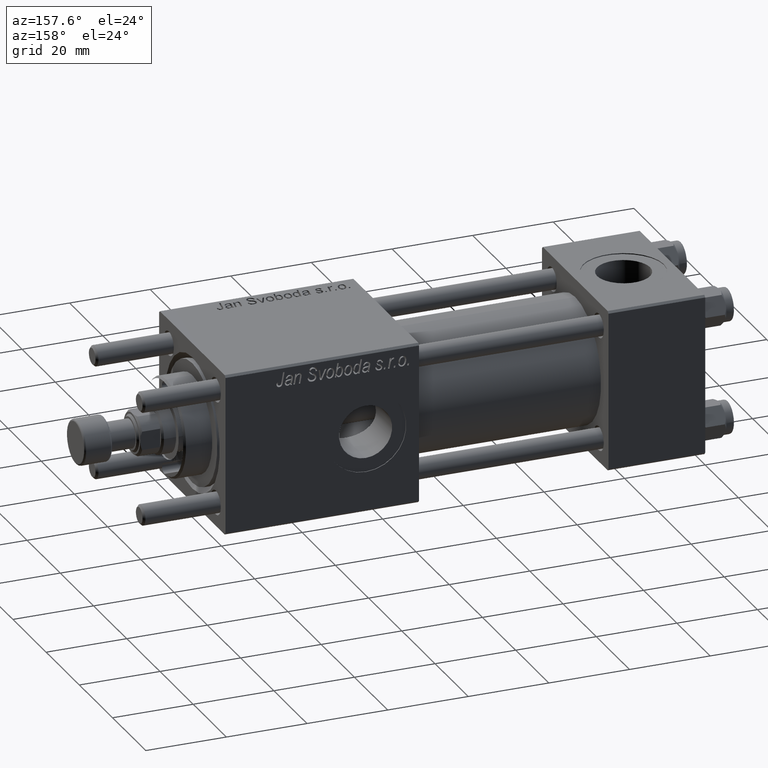
[diagram: clean part render]
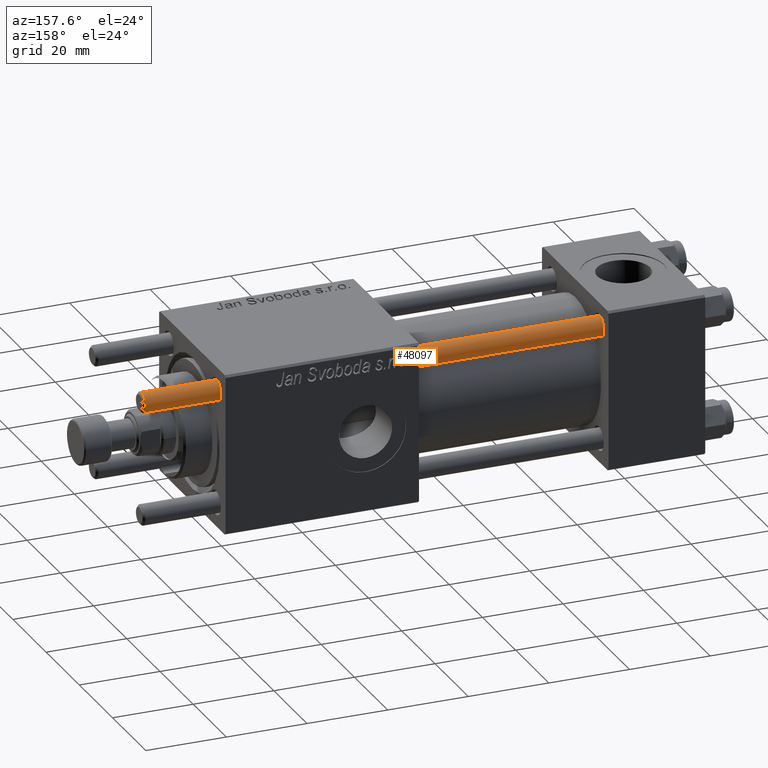
[diagram: same view with one face highlighted and labeled with its STEP entity id]
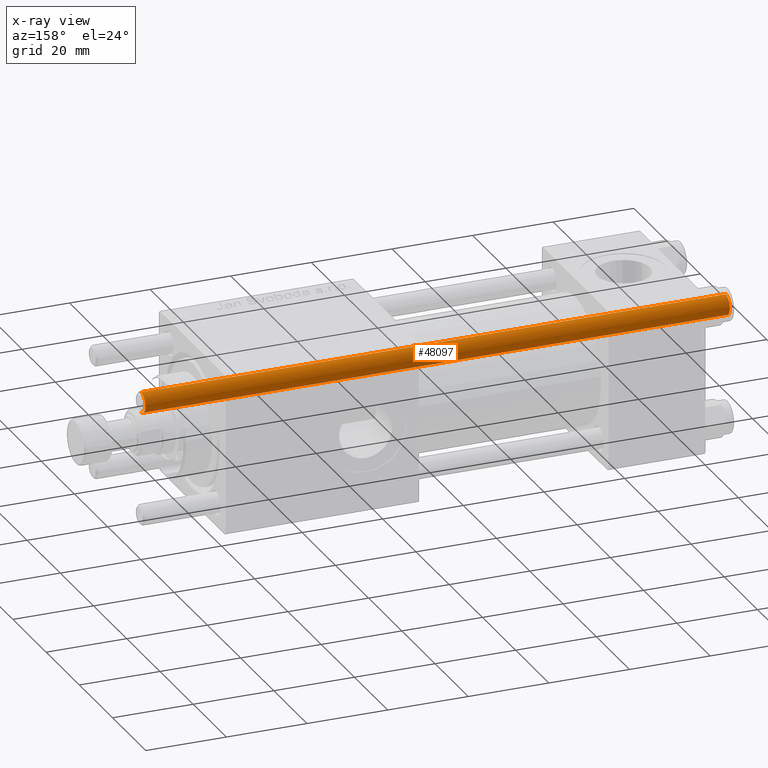
[diagram: x-ray of the same camera — body ghosted, the highlighted face saturated]
A machine part, auxiliary view. The second image highlights one B-rep face of the part: STEP entity #48097.
The next image is the same camera in x-ray: the body ghosted, the highlighted face saturated — about 0% of this face is hidden behind the body in this view.
In plain terms, the highlighted cylindrical surface (edge-blend (fillet) strip) has radius 2.5 mm, axis along (1, -0, -0).
Its self-contained STEP definition (entity closure, byte-faithful):
#936 = CARTESIAN_POINT ( 'NONE',  ( 0.000000000000000000, 0.000000000000000000, 146.0000000000000000 ) ) ;
#1532 = FACE_OUTER_BOUND ( 'NONE', #10732, .T. ) ;
#5181 = EDGE_CURVE ( 'NONE', #42223, #56870, #58290, .T. ) ;
#5599 = ORIENTED_EDGE ( 'NONE', *, *, #56224, .T. ) ;
#8146 = EDGE_CURVE ( 'NONE', #31445, #29868, #54064, .T. ) ;
#10732 = EDGE_LOOP ( 'NONE', ( #5599, #14109, #41659, #50674 ) ) ;
#11991 = CARTESIAN_POINT ( 'NONE',  ( -2.500000000000000000, 0.000000000000000000, 0.5000000000000559552 ) ) ;
#12501 = DIRECTION ( 'NONE',  ( 1.000000000000000000, 0.000000000000000000, 0.000000000000000000 ) ) ;
#14109 = ORIENTED_EDGE ( 'NONE', *, *, #5181, .T. ) ;
#14234 = AXIS2_PLACEMENT_3D ( 'NONE', #936, #51693, #37081 ) ;
#16092 = AXIS2_PLACEMENT_3D ( 'NONE', #46170, #27651, #50641 ) ;
#19749 = CYLINDRICAL_SURFACE ( 'NONE', #14234, 2.500000000000000000 ) ;
#20826 = CIRCLE ( 'NONE', #16092, 2.500000000000000000 ) ;
#21815 = CARTESIAN_POINT ( 'NONE',  ( -2.500000000000000000, 0.000000000000000000, 146.0000000000000000 ) ) ;
#27651 = DIRECTION ( 'NONE',  ( -0.000000000000000000, -0.000000000000000000, 1.000000000000000000 ) ) ;
#27791 = CARTESIAN_POINT ( 'NONE',  ( 2.500000000000000000, 3.061616997868383141E-16, 0.5000000000000559552 ) ) ;
#29868 = VERTEX_POINT ( 'NONE', #11991 ) ;
#30475 = DIRECTION ( 'NONE',  ( -0.000000000000000000, -0.000000000000000000, -1.000000000000000000 ) ) ;
#31445 = VERTEX_POINT ( 'NONE', #51467 ) ;
#33576 = VECTOR ( 'NONE', #30475, 1000.000000000000000 ) ;
#37081 = DIRECTION ( 'NONE',  ( -1.000000000000000000, 0.000000000000000000, 0.000000000000000000 ) ) ;
#39106 = DIRECTION ( 'NONE',  ( 0.000000000000000000, 0.000000000000000000, -1.000000000000000000 ) ) ;
#40137 = VECTOR ( 'NONE', #51365, 1000.000000000000000 ) ;
#41095 = CARTESIAN_POINT ( 'NONE',  ( 2.500000000000000000, 3.061616997868383141E-16, 145.5000000000000284 ) ) ;
#41659 = ORIENTED_EDGE ( 'NONE', *, *, #42180, .T. ) ;
#42180 = EDGE_CURVE ( 'NONE', #56870, #29868, #20826, .T. ) ;
#42223 = VERTEX_POINT ( 'NONE', #41095 ) ;
#46170 = CARTESIAN_POINT ( 'NONE',  ( 0.000000000000000000, 0.000000000000000000, 0.5000000000000559552 ) ) ;
#46935 = CIRCLE ( 'NONE', #51660, 2.500000000000000000 ) ;
#48097 = ADVANCED_FACE ( 'NONE', ( #1532 ), #19749, .T. ) ;
#50492 = CARTESIAN_POINT ( 'NONE',  ( 2.500000000000000000, 3.061616997868383141E-16, 146.0000000000000000 ) ) ;
#50641 = DIRECTION ( 'NONE',  ( 1.000000000000000000, 0.000000000000000000, 0.000000000000000000 ) ) ;
#50674 = ORIENTED_EDGE ( 'NONE', *, *, #8146, .F. ) ;
#51365 = DIRECTION ( 'NONE',  ( -0.000000000000000000, -0.000000000000000000, -1.000000000000000000 ) ) ;
#51467 = CARTESIAN_POINT ( 'NONE',  ( -2.500000000000000000, 0.000000000000000000, 145.5000000000000284 ) ) ;
#51660 = AXIS2_PLACEMENT_3D ( 'NONE', #53421, #39106, #12501 ) ;
#51693 = DIRECTION ( 'NONE',  ( -0.000000000000000000, -0.000000000000000000, -1.000000000000000000 ) ) ;
#53421 = CARTESIAN_POINT ( 'NONE',  ( 0.000000000000000000, 0.000000000000000000, 145.5000000000000284 ) ) ;
#54064 = LINE ( 'NONE', #21815, #33576 ) ;
#56224 = EDGE_CURVE ( 'NONE', #31445, #42223, #46935, .T. ) ;
#56870 = VERTEX_POINT ( 'NONE', #27791 ) ;
#58290 = LINE ( 'NONE', #50492, #40137 ) ;